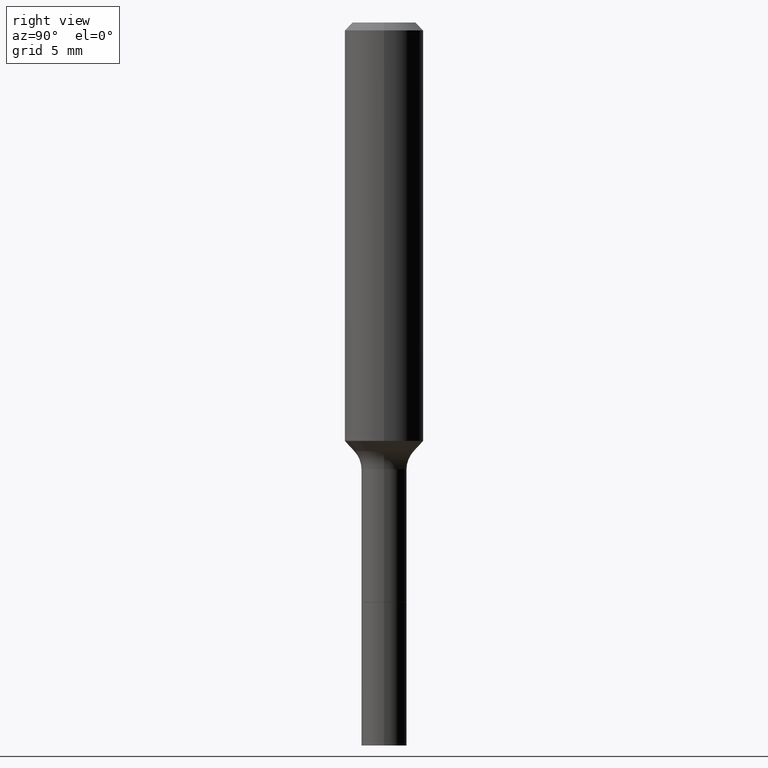
[diagram: clean part render]
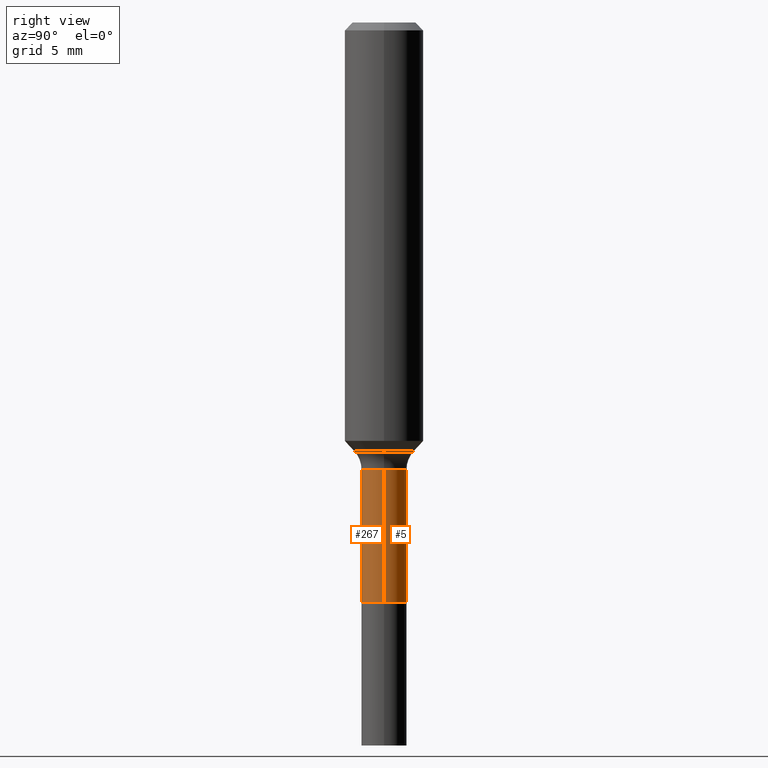
[diagram: same view with one multi-face feature highlighted, each face labeled with its STEP entity id]
A machine part, right view. The highlighted faces form ONE feature: a constant-radius fillet chain: 2 tangent blend faces with common blend radius 1.7272 mm. The faces share edges in the B-rep.
Their STEP definitions:
[1] entity #5 (Cylinder):
#5 = ADVANCED_FACE ( 'NONE', ( #245 ), #414, .T. ) ;
#10 = LINE ( 'NONE', #294, #454 ) ;
#17 = EDGE_CURVE ( 'NONE', #87, #514, #10, .T. ) ;
#34 = CARTESIAN_POINT ( 'NONE',  ( 3.273015450198186344E-29, -4.672998623907665346E-15, -1.338399999999999812 ) ) ;
#53 = AXIS2_PLACEMENT_3D ( 'NONE', #481, #369, #485 ) ;
#61 = CARTESIAN_POINT ( 'NONE',  ( -0.06800000000000001876, -4.883761479685873253E-15, -1.735899999999999999 ) ) ;
#68 = AXIS2_PLACEMENT_3D ( 'NONE', #487, #333, #248 ) ;
#86 = CARTESIAN_POINT ( 'NONE',  ( -0.06799999999999994937, -4.883761479685873253E-15, -1.338399999999999812 ) ) ;
#87 = VERTEX_POINT ( 'NONE', #149 ) ;
#93 = EDGE_CURVE ( 'NONE', #164, #348, #273, .T. ) ;
#118 = ORIENTED_EDGE ( 'NONE', *, *, #464, .F. ) ;
#122 = CIRCLE ( 'NONE', #53, 0.06800000000000000488 ) ;
#149 = CARTESIAN_POINT ( 'NONE',  ( 0.06800000000000000488, -6.535703918180482229E-15, -1.735899999999999999 ) ) ;
#164 = VERTEX_POINT ( 'NONE', #61 ) ;
#170 = DIRECTION ( 'NONE',  ( -2.445468806185136877E-29, 3.491481338843145188E-15, 1.000000000000000000 ) ) ;
#174 = DIRECTION ( 'NONE',  ( 1.000000000000000000, -6.982962677686265922E-15, 0.000000000000000000 ) ) ;
#221 = DIRECTION ( 'NONE',  ( -2.445468806185136877E-29, 3.491481338843145188E-15, 1.000000000000000000 ) ) ;
#233 = EDGE_CURVE ( 'NONE', #87, #164, #122, .T. ) ;
#241 = CIRCLE ( 'NONE', #366, 0.06799999999999994937 ) ;
#245 = FACE_OUTER_BOUND ( 'NONE', #362, .T. ) ;
#248 = DIRECTION ( 'NONE',  ( 1.000000000000000000, -6.982962677686267499E-15, 4.876176775795935793E-29 ) ) ;
#273 = LINE ( 'NONE', #315, #364 ) ;
#294 = CARTESIAN_POINT ( 'NONE',  ( 0.06799999999999997713, -4.748414620826660298E-16, 3.315800207541235302E-30 ) ) ;
#315 = CARTESIAN_POINT ( 'NONE',  ( -0.06799999999999997713, 4.831690603168679639E-16, -3.344875861373334654E-30 ) ) ;
#316 = ORIENTED_EDGE ( 'NONE', *, *, #233, .T. ) ;
#333 = DIRECTION ( 'NONE',  ( -2.445468806185136597E-29, 3.491481338843145583E-15, 1.000000000000000000 ) ) ;
#348 = VERTEX_POINT ( 'NONE', #86 ) ;
#356 = ORIENTED_EDGE ( 'NONE', *, *, #17, .F. ) ;
#362 = EDGE_LOOP ( 'NONE', ( #316, #478, #118, #356 ) ) ;
#364 = VECTOR ( 'NONE', #221, 39.37007874015748143 ) ;
#366 = AXIS2_PLACEMENT_3D ( 'NONE', #34, #488, #174 ) ;
#369 = DIRECTION ( 'NONE',  ( -2.445468806185136597E-29, 3.491481338843145583E-15, 1.000000000000000000 ) ) ;
#378 = CARTESIAN_POINT ( 'NONE',  ( 0.06799999999999994937, -5.147840085990330883E-15, -1.338399999999999812 ) ) ;
#414 = CYLINDRICAL_SURFACE ( 'NONE', #68, 0.06799999999999997713 ) ;
#454 = VECTOR ( 'NONE', #170, 39.37007874015748143 ) ;
#464 = EDGE_CURVE ( 'NONE', #514, #348, #241, .T. ) ;
#478 = ORIENTED_EDGE ( 'NONE', *, *, #93, .T. ) ;
#481 = CARTESIAN_POINT ( 'NONE',  ( 4.245089300656778545E-29, -6.060862456097816693E-15, -1.735899999999999999 ) ) ;
#485 = DIRECTION ( 'NONE',  ( 1.000000000000000000, -6.982962677686260400E-15, 0.000000000000000000 ) ) ;
#487 = CARTESIAN_POINT ( 'NONE',  ( 0.000000000000000000, 0.000000000000000000, 0.000000000000000000 ) ) ;
#488 = DIRECTION ( 'NONE',  ( -2.445468806185136597E-29, 3.491481338843145583E-15, 1.000000000000000000 ) ) ;
#514 = VERTEX_POINT ( 'NONE', #378 ) ;
[2] entity #267 (Cylinder):
#10 = LINE ( 'NONE', #294, #454 ) ;
#17 = EDGE_CURVE ( 'NONE', #87, #514, #10, .T. ) ;
#28 = DIRECTION ( 'NONE',  ( 1.000000000000000000, -6.982962677686265922E-15, 0.000000000000000000 ) ) ;
#29 = AXIS2_PLACEMENT_3D ( 'NONE', #308, #463, #28 ) ;
#61 = CARTESIAN_POINT ( 'NONE',  ( -0.06800000000000001876, -4.883761479685873253E-15, -1.735899999999999999 ) ) ;
#74 = CARTESIAN_POINT ( 'NONE',  ( 0.000000000000000000, 0.000000000000000000, 0.000000000000000000 ) ) ;
#86 = CARTESIAN_POINT ( 'NONE',  ( -0.06799999999999994937, -4.883761479685873253E-15, -1.338399999999999812 ) ) ;
#87 = VERTEX_POINT ( 'NONE', #149 ) ;
#93 = EDGE_CURVE ( 'NONE', #164, #348, #273, .T. ) ;
#113 = DIRECTION ( 'NONE',  ( 1.000000000000000000, -6.982962677686267499E-15, 4.876176775795935793E-29 ) ) ;
#133 = EDGE_CURVE ( 'NONE', #164, #87, #274, .T. ) ;
#139 = CARTESIAN_POINT ( 'NONE',  ( 4.245089300656778545E-29, -6.060862456097816693E-15, -1.735899999999999999 ) ) ;
#149 = CARTESIAN_POINT ( 'NONE',  ( 0.06800000000000000488, -6.535703918180482229E-15, -1.735899999999999999 ) ) ;
#164 = VERTEX_POINT ( 'NONE', #61 ) ;
#170 = DIRECTION ( 'NONE',  ( -2.445468806185136877E-29, 3.491481338843145188E-15, 1.000000000000000000 ) ) ;
#172 = EDGE_CURVE ( 'NONE', #348, #514, #263, .T. ) ;
#201 = AXIS2_PLACEMENT_3D ( 'NONE', #74, #473, #113 ) ;
#221 = DIRECTION ( 'NONE',  ( -2.445468806185136877E-29, 3.491481338843145188E-15, 1.000000000000000000 ) ) ;
#232 = CYLINDRICAL_SURFACE ( 'NONE', #201, 0.06799999999999997713 ) ;
#263 = CIRCLE ( 'NONE', #29, 0.06799999999999994937 ) ;
#267 = ADVANCED_FACE ( 'NONE', ( #442 ), #232, .T. ) ;
#273 = LINE ( 'NONE', #315, #364 ) ;
#274 = CIRCLE ( 'NONE', #491, 0.06800000000000000488 ) ;
#294 = CARTESIAN_POINT ( 'NONE',  ( 0.06799999999999997713, -4.748414620826660298E-16, 3.315800207541235302E-30 ) ) ;
#308 = CARTESIAN_POINT ( 'NONE',  ( 3.273015450198186344E-29, -4.672998623907665346E-15, -1.338399999999999812 ) ) ;
#315 = CARTESIAN_POINT ( 'NONE',  ( -0.06799999999999997713, 4.831690603168679639E-16, -3.344875861373334654E-30 ) ) ;
#327 = EDGE_LOOP ( 'NONE', ( #501, #371, #462, #444 ) ) ;
#346 = DIRECTION ( 'NONE',  ( -2.445468806185136597E-29, 3.491481338843145583E-15, 1.000000000000000000 ) ) ;
#348 = VERTEX_POINT ( 'NONE', #86 ) ;
#364 = VECTOR ( 'NONE', #221, 39.37007874015748143 ) ;
#371 = ORIENTED_EDGE ( 'NONE', *, *, #133, .T. ) ;
#378 = CARTESIAN_POINT ( 'NONE',  ( 0.06799999999999994937, -5.147840085990330883E-15, -1.338399999999999812 ) ) ;
#442 = FACE_OUTER_BOUND ( 'NONE', #327, .T. ) ;
#444 = ORIENTED_EDGE ( 'NONE', *, *, #172, .F. ) ;
#454 = VECTOR ( 'NONE', #170, 39.37007874015748143 ) ;
#462 = ORIENTED_EDGE ( 'NONE', *, *, #17, .T. ) ;
#463 = DIRECTION ( 'NONE',  ( -2.445468806185136597E-29, 3.491481338843145583E-15, 1.000000000000000000 ) ) ;
#473 = DIRECTION ( 'NONE',  ( -2.445468806185136597E-29, 3.491481338843145583E-15, 1.000000000000000000 ) ) ;
#491 = AXIS2_PLACEMENT_3D ( 'NONE', #139, #346, #499 ) ;
#499 = DIRECTION ( 'NONE',  ( 1.000000000000000000, -6.982962677686260400E-15, 0.000000000000000000 ) ) ;
#501 = ORIENTED_EDGE ( 'NONE', *, *, #93, .F. ) ;
#514 = VERTEX_POINT ( 'NONE', #378 ) ;